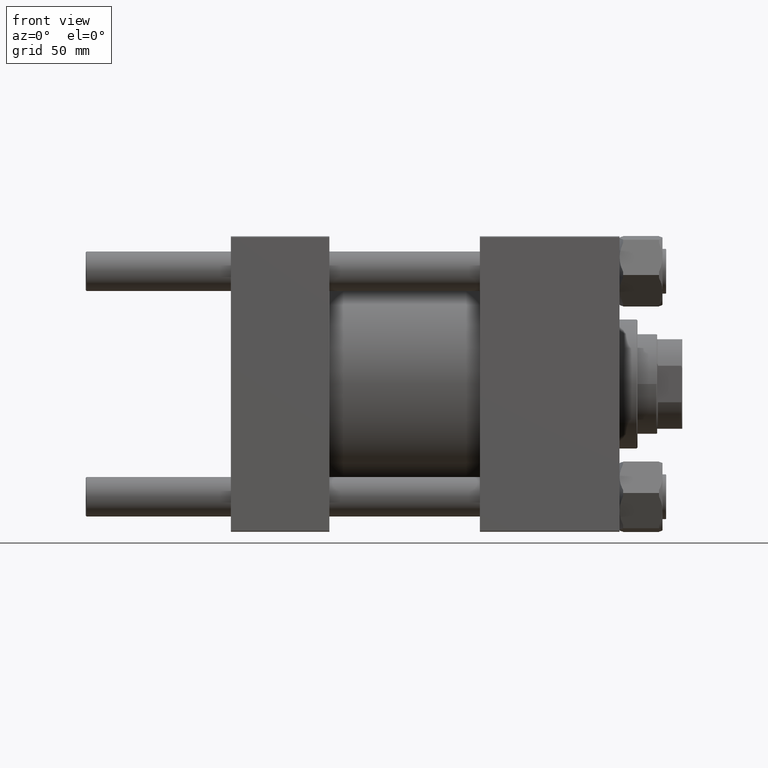
[diagram: clean part render]
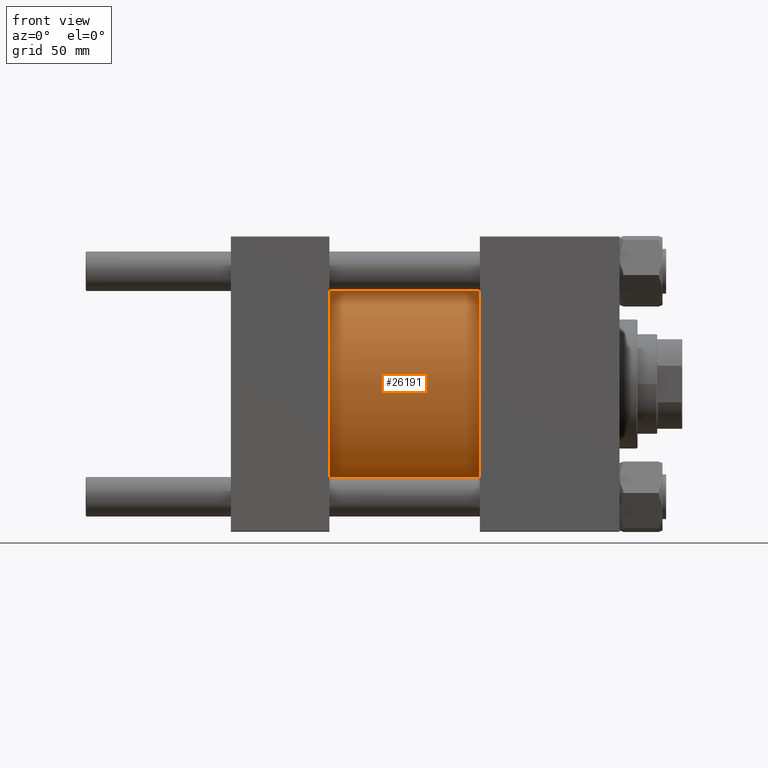
[diagram: same view with one face highlighted and labeled with its STEP entity id]
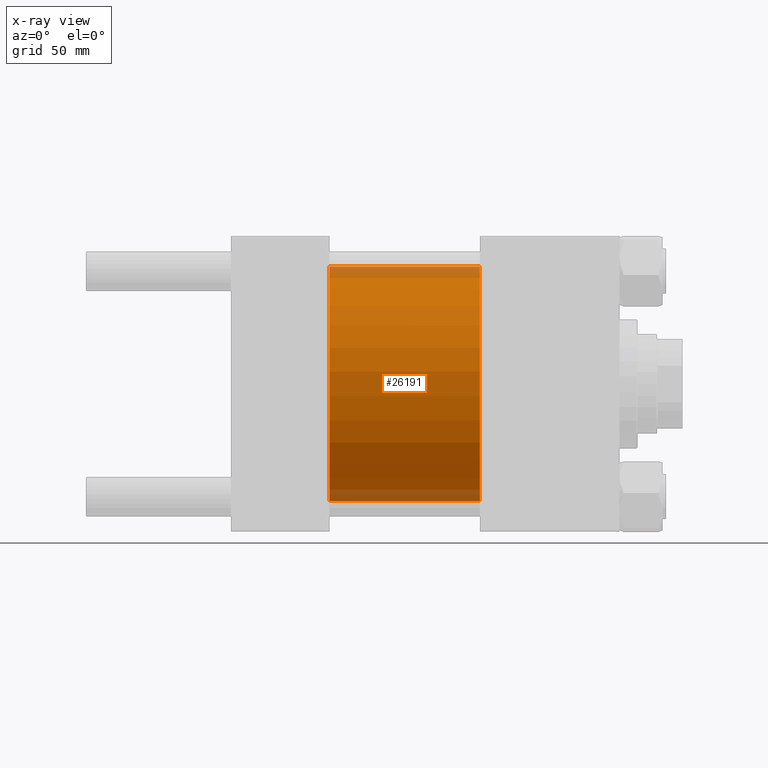
[diagram: x-ray of the same camera — body ghosted, the highlighted face saturated]
A machine part, front view. The second image highlights one B-rep face of the part: STEP entity #26191.
The next image is the same camera in x-ray: the body ghosted, the highlighted face saturated — about 10% of this face is hidden behind the body in this view.
In plain terms, the highlighted cylindrical surface (partial cylindrical patch) has radius 65.5 mm, axis along (-1, -0, -0).
Its self-contained STEP definition (entity closure, byte-faithful):
#1006 = CARTESIAN_POINT ( 'NONE',  ( 139.0000000000000000, 8.021436534415164826E-15, -65.50000000000001421 ) ) ;
#4128 = CARTESIAN_POINT ( 'NONE',  ( 139.0000000000000000, 0.000000000000000000, 0.000000000000000000 ) ) ;
#5155 = ORIENTED_EDGE ( 'NONE', *, *, #8805, .F. ) ;
#6049 = EDGE_CURVE ( 'NONE', #22860, #17143, #39231, .T. ) ;
#8805 = EDGE_CURVE ( 'NONE', #37907, #17143, #50480, .T. ) ;
#9085 = CARTESIAN_POINT ( 'NONE',  ( 54.99999999999999289, 8.021436534415164826E-15, -65.50000000000001421 ) ) ;
#14764 = AXIS2_PLACEMENT_3D ( 'NONE', #28696, #24863, #40433 ) ;
#14999 = DIRECTION ( 'NONE',  ( 0.000000000000000000, 0.000000000000000000, 1.000000000000000000 ) ) ;
#17143 = VERTEX_POINT ( 'NONE', #9085 ) ;
#17837 = ORIENTED_EDGE ( 'NONE', *, *, #26539, .T. ) ;
#18071 = LINE ( 'NONE', #25500, #21858 ) ;
#18303 = DIRECTION ( 'NONE',  ( -1.000000000000000000, -0.000000000000000000, -0.000000000000000000 ) ) ;
#18561 = CARTESIAN_POINT ( 'NONE',  ( 139.0000000000000000, 0.000000000000000000, 0.000000000000000000 ) ) ;
#18812 = CYLINDRICAL_SURFACE ( 'NONE', #26737, 65.50000000000001421 ) ;
#20049 = EDGE_CURVE ( 'NONE', #28424, #37907, #23265, .T. ) ;
#21858 = VECTOR ( 'NONE', #37728, 1000.000000000000000 ) ;
#22860 = VERTEX_POINT ( 'NONE', #33749 ) ;
#22990 = CARTESIAN_POINT ( 'NONE',  ( 139.0000000000000000, 0.000000000000000000, 65.50000000000001421 ) ) ;
#23265 = CIRCLE ( 'NONE', #33879, 65.50000000000001421 ) ;
#24668 = CARTESIAN_POINT ( 'NONE',  ( 139.0000000000000000, 8.021436534415164826E-15, -65.50000000000001421 ) ) ;
#24863 = DIRECTION ( 'NONE',  ( 1.000000000000000000, -0.000000000000000000, -0.000000000000000000 ) ) ;
#25430 = ORIENTED_EDGE ( 'NONE', *, *, #6049, .T. ) ;
#25500 = CARTESIAN_POINT ( 'NONE',  ( 139.0000000000000000, 0.000000000000000000, 65.50000000000001421 ) ) ;
#26191 = ADVANCED_FACE ( 'NONE', ( #49969 ), #18812, .T. ) ;
#26539 = EDGE_CURVE ( 'NONE', #28424, #22860, #18071, .T. ) ;
#26737 = AXIS2_PLACEMENT_3D ( 'NONE', #18561, #18303, #14999 ) ;
#28424 = VERTEX_POINT ( 'NONE', #22990 ) ;
#28696 = CARTESIAN_POINT ( 'NONE',  ( 54.99999999999999289, 0.000000000000000000, 0.000000000000000000 ) ) ;
#31668 = DIRECTION ( 'NONE',  ( 1.000000000000000000, 0.000000000000000000, 0.000000000000000000 ) ) ;
#33631 = ORIENTED_EDGE ( 'NONE', *, *, #20049, .F. ) ;
#33749 = CARTESIAN_POINT ( 'NONE',  ( 54.99999999999999289, 0.000000000000000000, 65.50000000000001421 ) ) ;
#33879 = AXIS2_PLACEMENT_3D ( 'NONE', #4128, #31668, #50061 ) ;
#37728 = DIRECTION ( 'NONE',  ( -1.000000000000000000, -0.000000000000000000, -0.000000000000000000 ) ) ;
#37907 = VERTEX_POINT ( 'NONE', #1006 ) ;
#39231 = CIRCLE ( 'NONE', #14764, 65.50000000000001421 ) ;
#40240 = DIRECTION ( 'NONE',  ( -1.000000000000000000, -0.000000000000000000, -0.000000000000000000 ) ) ;
#40433 = DIRECTION ( 'NONE',  ( 0.000000000000000000, 0.000000000000000000, 1.000000000000000000 ) ) ;
#45838 = VECTOR ( 'NONE', #40240, 1000.000000000000000 ) ;
#47500 = EDGE_LOOP ( 'NONE', ( #5155, #33631, #17837, #25430 ) ) ;
#49969 = FACE_OUTER_BOUND ( 'NONE', #47500, .T. ) ;
#50061 = DIRECTION ( 'NONE',  ( 0.000000000000000000, 0.000000000000000000, -1.000000000000000000 ) ) ;
#50480 = LINE ( 'NONE', #24668, #45838 ) ;